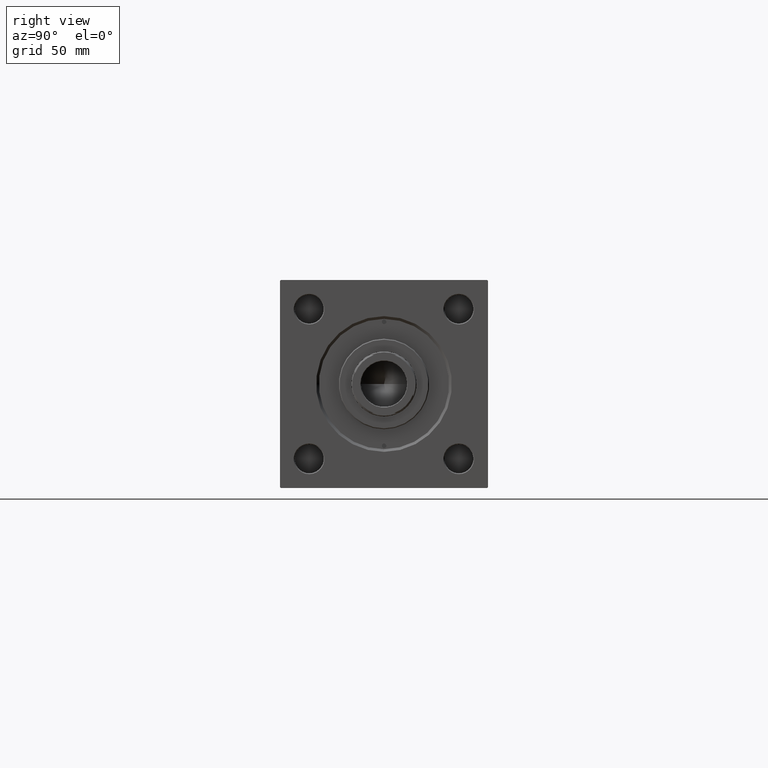
[diagram: clean part render]
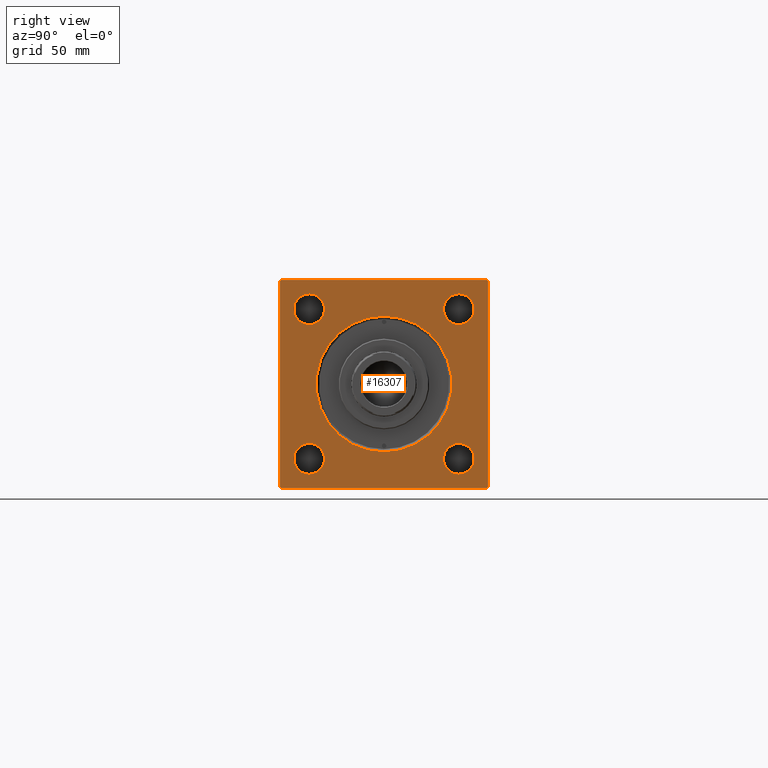
[diagram: same view with one face highlighted and labeled with its STEP entity id]
A machine part, right view. The second image highlights one B-rep face of the part: STEP entity #16307.
In plain terms, the highlighted planar face has unit normal (-1, 0, 0).
Its self-contained STEP definition (entity closure, byte-faithful):
#623 = VECTOR ( 'NONE', #36076, 1000.000000000000114 ) ;
#904 = VERTEX_POINT ( 'NONE', #16586 ) ;
#1837 = VERTEX_POINT ( 'NONE', #13794 ) ;
#2270 = AXIS2_PLACEMENT_3D ( 'NONE', #4287, #47453, #35626 ) ;
#2314 = VERTEX_POINT ( 'NONE', #34514 ) ;
#2322 = EDGE_CURVE ( 'NONE', #1837, #36965, #7023, .T. ) ;
#2437 = DIRECTION ( 'NONE',  ( 0.000000000000000000, 0.000000000000000000, 1.000000000000000000 ) ) ;
#2536 = CARTESIAN_POINT ( 'NONE',  ( 319.0000000000000000, 57.50000000000000000, -56.99999999999991473 ) ) ;
#2669 = EDGE_CURVE ( 'NONE', #2314, #22614, #32776, .T. ) ;
#2707 = ORIENTED_EDGE ( 'NONE', *, *, #4337, .T. ) ;
#2795 = ORIENTED_EDGE ( 'NONE', *, *, #47640, .T. ) ;
#2972 = CARTESIAN_POINT ( 'NONE',  ( 319.0000000000000000, -57.49999999999999289, 57.00000000000004974 ) ) ;
#3791 = DIRECTION ( 'NONE',  ( 0.000000000000000000, -1.000000000000000000, -1.206764157201257291E-16 ) ) ;
#3953 = LINE ( 'NONE', #11417, #38138 ) ;
#4166 = FACE_BOUND ( 'NONE', #47280, .T. ) ;
#4230 = DIRECTION ( 'NONE',  ( -1.000000000000000000, 0.000000000000000000, -0.000000000000000000 ) ) ;
#4287 = CARTESIAN_POINT ( 'NONE',  ( 319.0000000000000000, -41.34999999999999432, 41.35000000000000142 ) ) ;
#4337 = EDGE_CURVE ( 'NONE', #46898, #14248, #5640, .T. ) ;
#5188 = ORIENTED_EDGE ( 'NONE', *, *, #26940, .T. ) ;
#5640 = CIRCLE ( 'NONE', #26934, 8.500000000000007105 ) ;
#6314 = AXIS2_PLACEMENT_3D ( 'NONE', #26478, #41908, #46260 ) ;
#6477 = VERTEX_POINT ( 'NONE', #15244 ) ;
#6611 = DIRECTION ( 'NONE',  ( 0.000000000000000000, 0.000000000000000000, 1.000000000000000000 ) ) ;
#6851 = AXIS2_PLACEMENT_3D ( 'NONE', #19324, #11872, #19832 ) ;
#7023 = LINE ( 'NONE', #14227, #49142 ) ;
#7494 = CARTESIAN_POINT ( 'NONE',  ( 319.0000000000000000, 0.000000000000000000, 0.000000000000000000 ) ) ;
#7642 = CARTESIAN_POINT ( 'NONE',  ( 319.0000000000000000, 57.50000000000000000, 57.50000000000000711 ) ) ;
#7687 = DIRECTION ( 'NONE',  ( 0.000000000000000000, 0.000000000000000000, -1.000000000000000000 ) ) ;
#9037 = VERTEX_POINT ( 'NONE', #2536 ) ;
#9354 = EDGE_CURVE ( 'NONE', #13194, #1837, #22250, .T. ) ;
#9471 = CARTESIAN_POINT ( 'NONE',  ( 319.0000000000000000, 41.34999999999999432, -32.84999999999999432 ) ) ;
#9776 = CIRCLE ( 'NONE', #48228, 8.500000000000007105 ) ;
#9832 = AXIS2_PLACEMENT_3D ( 'NONE', #14693, #30353, #46031 ) ;
#10413 = CARTESIAN_POINT ( 'NONE',  ( 319.0000000000000000, -57.00000000000004263, 57.49999999999999289 ) ) ;
#11417 = CARTESIAN_POINT ( 'NONE',  ( 319.0000000000000000, 57.00000000000000000, 57.50000000000000711 ) ) ;
#11872 = DIRECTION ( 'NONE',  ( -1.000000000000000000, 0.000000000000000000, -0.000000000000000000 ) ) ;
#11981 = EDGE_CURVE ( 'NONE', #37529, #13194, #46952, .T. ) ;
#12022 = DIRECTION ( 'NONE',  ( 0.000000000000000000, 0.000000000000000000, 1.000000000000000000 ) ) ;
#12451 = VERTEX_POINT ( 'NONE', #49677 ) ;
#12957 = AXIS2_PLACEMENT_3D ( 'NONE', #7494, #23167, #33955 ) ;
#13038 = CARTESIAN_POINT ( 'NONE',  ( 319.0000000000000000, -41.34999999999999432, -41.35000000000000142 ) ) ;
#13194 = VERTEX_POINT ( 'NONE', #10413 ) ;
#13794 = CARTESIAN_POINT ( 'NONE',  ( 319.0000000000000000, -57.49999999999999289, 57.00000000000004974 ) ) ;
#13922 = EDGE_CURVE ( 'NONE', #6477, #9037, #20010, .T. ) ;
#13956 = ORIENTED_EDGE ( 'NONE', *, *, #2322, .T. ) ;
#13994 = DIRECTION ( 'NONE',  ( -1.000000000000000000, 0.000000000000000000, -0.000000000000000000 ) ) ;
#14181 = DIRECTION ( 'NONE',  ( 0.000000000000000000, 0.7071067811865525687, -0.7071067811865425767 ) ) ;
#14227 = CARTESIAN_POINT ( 'NONE',  ( 319.0000000000000000, -57.49999999999999289, 57.49999999999999289 ) ) ;
#14248 = VERTEX_POINT ( 'NONE', #38963 ) ;
#14693 = CARTESIAN_POINT ( 'NONE',  ( 319.0000000000000000, 0.000000000000000000, 0.000000000000000000 ) ) ;
#14983 = EDGE_LOOP ( 'NONE', ( #16112, #38999 ) ) ;
#15015 = CARTESIAN_POINT ( 'NONE',  ( 319.0000000000000000, 41.34999999999999432, -41.35000000000000142 ) ) ;
#15244 = CARTESIAN_POINT ( 'NONE',  ( 319.0000000000000000, 57.50000000000000000, 57.00000000000000711 ) ) ;
#15528 = CARTESIAN_POINT ( 'NONE',  ( 319.0000000000000000, 56.99999999999994316, -57.49999999999996447 ) ) ;
#15825 = ORIENTED_EDGE ( 'NONE', *, *, #9354, .T. ) ;
#16112 = ORIENTED_EDGE ( 'NONE', *, *, #19163, .T. ) ;
#16176 = CIRCLE ( 'NONE', #6314, 8.500000000000007105 ) ;
#16214 = AXIS2_PLACEMENT_3D ( 'NONE', #49205, #13994, #2437 ) ;
#16307 = ADVANCED_FACE ( 'NONE', ( #35258, #4166, #27289, #32154, #27803, #24191 ), #16485, .F. ) ;
#16485 = PLANE ( 'NONE',  #6851 ) ;
#16539 = CARTESIAN_POINT ( 'NONE',  ( 319.0000000000000000, 57.50000000000000000, -56.99999999999991473 ) ) ;
#16586 = CARTESIAN_POINT ( 'NONE',  ( 319.0000000000000000, -56.99999999999998579, -57.49999999999997868 ) ) ;
#17281 = EDGE_LOOP ( 'NONE', ( #49435, #21040 ) ) ;
#17830 = VECTOR ( 'NONE', #14181, 999.9999999999998863 ) ;
#17889 = DIRECTION ( 'NONE',  ( -0.000000000000000000, -0.7071067811865524577, -0.7071067811865426878 ) ) ;
#17968 = EDGE_LOOP ( 'NONE', ( #24963, #2795 ) ) ;
#19057 = EDGE_LOOP ( 'NONE', ( #36104, #2707 ) ) ;
#19163 = EDGE_CURVE ( 'NONE', #22296, #47527, #20918, .T. ) ;
#19324 = CARTESIAN_POINT ( 'NONE',  ( 319.0000000000000000, 0.000000000000000000, 0.000000000000000000 ) ) ;
#19484 = CIRCLE ( 'NONE', #16214, 8.500000000000007105 ) ;
#19689 = CARTESIAN_POINT ( 'NONE',  ( 319.0000000000000000, 41.34999999999999432, 32.84999999999999432 ) ) ;
#19832 = DIRECTION ( 'NONE',  ( -0.000000000000000000, 0.000000000000000000, 1.000000000000000000 ) ) ;
#20010 = LINE ( 'NONE', #27725, #37256 ) ;
#20833 = CARTESIAN_POINT ( 'NONE',  ( 319.0000000000000000, 4.592425496802571211E-15, 37.49999999999997868 ) ) ;
#20918 = CIRCLE ( 'NONE', #38127, 8.500000000000007105 ) ;
#21040 = ORIENTED_EDGE ( 'NONE', *, *, #30049, .T. ) ;
#22040 = DIRECTION ( 'NONE',  ( -1.000000000000000000, 0.000000000000000000, -0.000000000000000000 ) ) ;
#22250 = LINE ( 'NONE', #2972, #22340 ) ;
#22296 = VERTEX_POINT ( 'NONE', #38326 ) ;
#22340 = VECTOR ( 'NONE', #17889, 1000.000000000000000 ) ;
#22614 = VERTEX_POINT ( 'NONE', #20833 ) ;
#23006 = EDGE_CURVE ( 'NONE', #12451, #34788, #30068, .T. ) ;
#23167 = DIRECTION ( 'NONE',  ( -1.000000000000000000, 0.000000000000000000, -0.000000000000000000 ) ) ;
#24191 = FACE_OUTER_BOUND ( 'NONE', #50758, .T. ) ;
#24253 = VERTEX_POINT ( 'NONE', #15528 ) ;
#24426 = VECTOR ( 'NONE', #47711, 1000.000000000000000 ) ;
#24963 = ORIENTED_EDGE ( 'NONE', *, *, #2669, .T. ) ;
#25325 = CIRCLE ( 'NONE', #32687, 8.500000000000007105 ) ;
#26034 = EDGE_CURVE ( 'NONE', #34788, #12451, #40828, .T. ) ;
#26126 = EDGE_CURVE ( 'NONE', #24253, #904, #50550, .T. ) ;
#26478 = CARTESIAN_POINT ( 'NONE',  ( 319.0000000000000000, 41.34999999999999432, 41.35000000000000142 ) ) ;
#26595 = CARTESIAN_POINT ( 'NONE',  ( 319.0000000000000000, 41.34999999999999432, 49.85000000000001563 ) ) ;
#26934 = AXIS2_PLACEMENT_3D ( 'NONE', #45662, #41555, #6611 ) ;
#26940 = EDGE_CURVE ( 'NONE', #24253, #9037, #44023, .T. ) ;
#27289 = FACE_BOUND ( 'NONE', #14983, .T. ) ;
#27355 = CARTESIAN_POINT ( 'NONE',  ( 319.0000000000000000, 41.34999999999999432, 41.35000000000000142 ) ) ;
#27362 = VECTOR ( 'NONE', #3791, 1000.000000000000000 ) ;
#27725 = CARTESIAN_POINT ( 'NONE',  ( 319.0000000000000000, 57.50000000000000000, 57.50000000000000711 ) ) ;
#27733 = CIRCLE ( 'NONE', #12957, 37.49999999999997868 ) ;
#27803 = FACE_BOUND ( 'NONE', #17968, .T. ) ;
#28718 = DIRECTION ( 'NONE',  ( -1.000000000000000000, 0.000000000000000000, -0.000000000000000000 ) ) ;
#29863 = CARTESIAN_POINT ( 'NONE',  ( 319.0000000000000000, -41.34999999999999432, -32.84999999999999432 ) ) ;
#30049 = EDGE_CURVE ( 'NONE', #35491, #39560, #9776, .T. ) ;
#30068 = CIRCLE ( 'NONE', #44820, 8.500000000000007105 ) ;
#30353 = DIRECTION ( 'NONE',  ( -1.000000000000000000, 0.000000000000000000, -0.000000000000000000 ) ) ;
#30498 = DIRECTION ( 'NONE',  ( 0.000000000000000000, 0.000000000000000000, 1.000000000000000000 ) ) ;
#30676 = DIRECTION ( 'NONE',  ( -1.000000000000000000, 0.000000000000000000, -0.000000000000000000 ) ) ;
#31084 = ORIENTED_EDGE ( 'NONE', *, *, #23006, .T. ) ;
#32154 = FACE_BOUND ( 'NONE', #19057, .T. ) ;
#32687 = AXIS2_PLACEMENT_3D ( 'NONE', #15015, #30676, #48878 ) ;
#32776 = CIRCLE ( 'NONE', #9832, 37.49999999999997868 ) ;
#33955 = DIRECTION ( 'NONE',  ( 0.000000000000000000, 0.000000000000000000, 1.000000000000000000 ) ) ;
#34514 = CARTESIAN_POINT ( 'NONE',  ( 319.0000000000000000, 0.000000000000000000, -37.49999999999997868 ) ) ;
#34788 = VERTEX_POINT ( 'NONE', #44384 ) ;
#35035 = DIRECTION ( 'NONE',  ( 0.000000000000000000, -0.7071067811865474617, 0.7071067811865474617 ) ) ;
#35258 = FACE_BOUND ( 'NONE', #17281, .T. ) ;
#35418 = CARTESIAN_POINT ( 'NONE',  ( 319.0000000000000000, -56.99999999999998579, -57.49999999999997868 ) ) ;
#35491 = VERTEX_POINT ( 'NONE', #26595 ) ;
#35626 = DIRECTION ( 'NONE',  ( 0.000000000000000000, 0.000000000000000000, 1.000000000000000000 ) ) ;
#36076 = DIRECTION ( 'NONE',  ( -0.000000000000000000, 0.7071067811865474617, 0.7071067811865474617 ) ) ;
#36104 = ORIENTED_EDGE ( 'NONE', *, *, #48387, .T. ) ;
#36965 = VERTEX_POINT ( 'NONE', #37982 ) ;
#37256 = VECTOR ( 'NONE', #7687, 1000.000000000000000 ) ;
#37529 = VERTEX_POINT ( 'NONE', #40728 ) ;
#37982 = CARTESIAN_POINT ( 'NONE',  ( 319.0000000000000000, -57.49999999999999289, -56.99999999999997868 ) ) ;
#38056 = LINE ( 'NONE', #35418, #17830 ) ;
#38127 = AXIS2_PLACEMENT_3D ( 'NONE', #13038, #28718, #12022 ) ;
#38138 = VECTOR ( 'NONE', #35035, 1000.000000000000114 ) ;
#38326 = CARTESIAN_POINT ( 'NONE',  ( 319.0000000000000000, -41.34999999999999432, -49.85000000000001563 ) ) ;
#38617 = DIRECTION ( 'NONE',  ( 0.000000000000000000, 0.000000000000000000, -1.000000000000000000 ) ) ;
#38963 = CARTESIAN_POINT ( 'NONE',  ( 319.0000000000000000, 41.34999999999999432, -49.85000000000001563 ) ) ;
#38999 = ORIENTED_EDGE ( 'NONE', *, *, #46284, .T. ) ;
#39560 = VERTEX_POINT ( 'NONE', #19689 ) ;
#39735 = CARTESIAN_POINT ( 'NONE',  ( 319.0000000000000000, 57.50000000000000000, -57.49999999999996447 ) ) ;
#39754 = EDGE_CURVE ( 'NONE', #6477, #37529, #3953, .T. ) ;
#40728 = CARTESIAN_POINT ( 'NONE',  ( 319.0000000000000000, 57.00000000000000000, 57.50000000000000711 ) ) ;
#40828 = CIRCLE ( 'NONE', #2270, 8.500000000000007105 ) ;
#41511 = ORIENTED_EDGE ( 'NONE', *, *, #26126, .F. ) ;
#41555 = DIRECTION ( 'NONE',  ( -1.000000000000000000, 0.000000000000000000, -0.000000000000000000 ) ) ;
#41755 = ORIENTED_EDGE ( 'NONE', *, *, #39754, .T. ) ;
#41908 = DIRECTION ( 'NONE',  ( -1.000000000000000000, 0.000000000000000000, -0.000000000000000000 ) ) ;
#43001 = ORIENTED_EDGE ( 'NONE', *, *, #13922, .F. ) ;
#44023 = LINE ( 'NONE', #16539, #623 ) ;
#44384 = CARTESIAN_POINT ( 'NONE',  ( 319.0000000000000000, -41.34999999999999432, 49.85000000000001563 ) ) ;
#44820 = AXIS2_PLACEMENT_3D ( 'NONE', #49027, #22040, #30498 ) ;
#45386 = ORIENTED_EDGE ( 'NONE', *, *, #26034, .T. ) ;
#45497 = EDGE_CURVE ( 'NONE', #39560, #35491, #16176, .T. ) ;
#45662 = CARTESIAN_POINT ( 'NONE',  ( 319.0000000000000000, 41.34999999999999432, -41.35000000000000142 ) ) ;
#46031 = DIRECTION ( 'NONE',  ( 0.000000000000000000, 0.000000000000000000, 1.000000000000000000 ) ) ;
#46260 = DIRECTION ( 'NONE',  ( 0.000000000000000000, 0.000000000000000000, 1.000000000000000000 ) ) ;
#46284 = EDGE_CURVE ( 'NONE', #47527, #22296, #19484, .T. ) ;
#46722 = EDGE_CURVE ( 'NONE', #36965, #904, #38056, .T. ) ;
#46898 = VERTEX_POINT ( 'NONE', #9471 ) ;
#46952 = LINE ( 'NONE', #7642, #27362 ) ;
#47280 = EDGE_LOOP ( 'NONE', ( #31084, #45386 ) ) ;
#47453 = DIRECTION ( 'NONE',  ( -1.000000000000000000, 0.000000000000000000, -0.000000000000000000 ) ) ;
#47527 = VERTEX_POINT ( 'NONE', #29863 ) ;
#47640 = EDGE_CURVE ( 'NONE', #22614, #2314, #27733, .T. ) ;
#47711 = DIRECTION ( 'NONE',  ( 0.000000000000000000, -1.000000000000000000, -1.206764157201257291E-16 ) ) ;
#48228 = AXIS2_PLACEMENT_3D ( 'NONE', #27355, #4230, #50484 ) ;
#48387 = EDGE_CURVE ( 'NONE', #14248, #46898, #25325, .T. ) ;
#48878 = DIRECTION ( 'NONE',  ( 0.000000000000000000, 0.000000000000000000, 1.000000000000000000 ) ) ;
#48903 = ORIENTED_EDGE ( 'NONE', *, *, #11981, .T. ) ;
#49027 = CARTESIAN_POINT ( 'NONE',  ( 319.0000000000000000, -41.34999999999999432, 41.35000000000000142 ) ) ;
#49142 = VECTOR ( 'NONE', #38617, 1000.000000000000000 ) ;
#49205 = CARTESIAN_POINT ( 'NONE',  ( 319.0000000000000000, -41.34999999999999432, -41.35000000000000142 ) ) ;
#49435 = ORIENTED_EDGE ( 'NONE', *, *, #45497, .T. ) ;
#49677 = CARTESIAN_POINT ( 'NONE',  ( 319.0000000000000000, -41.34999999999999432, 32.84999999999999432 ) ) ;
#50484 = DIRECTION ( 'NONE',  ( 0.000000000000000000, 0.000000000000000000, 1.000000000000000000 ) ) ;
#50550 = LINE ( 'NONE', #39735, #24426 ) ;
#50758 = EDGE_LOOP ( 'NONE', ( #13956, #50824, #41511, #5188, #43001, #41755, #48903, #15825 ) ) ;
#50824 = ORIENTED_EDGE ( 'NONE', *, *, #46722, .T. ) ;